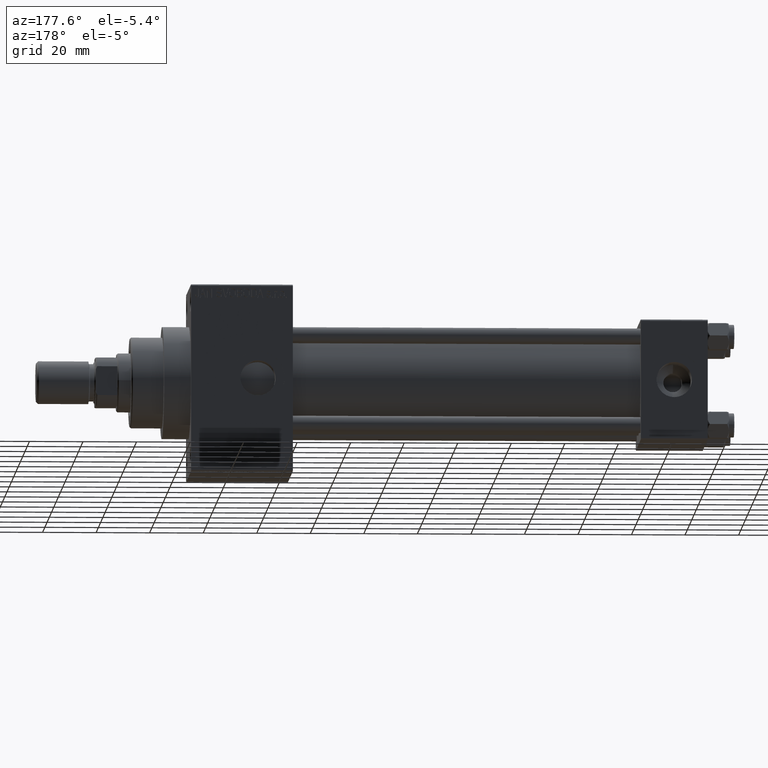
[diagram: clean part render]
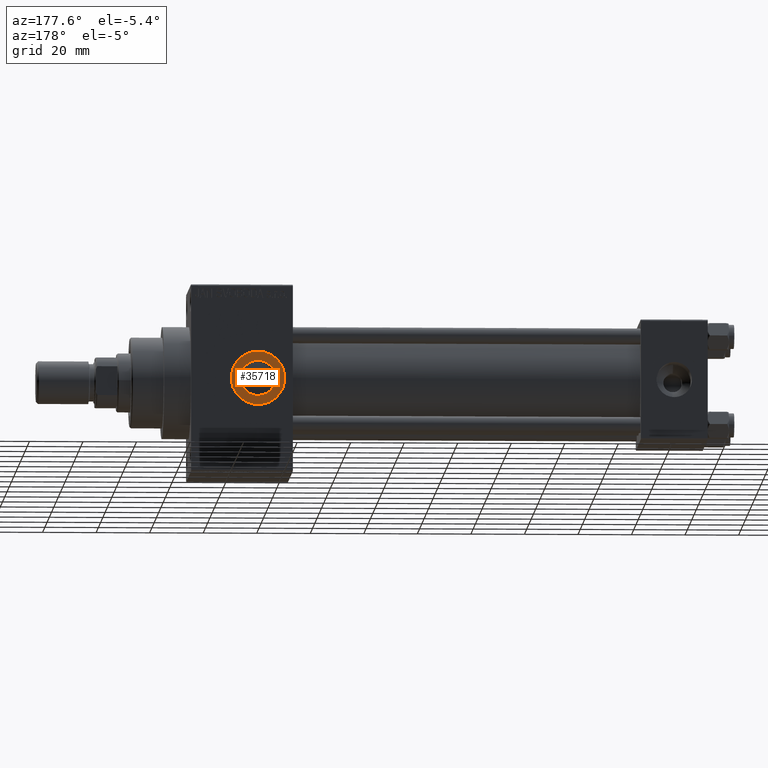
[diagram: same view with one face highlighted and labeled with its STEP entity id]
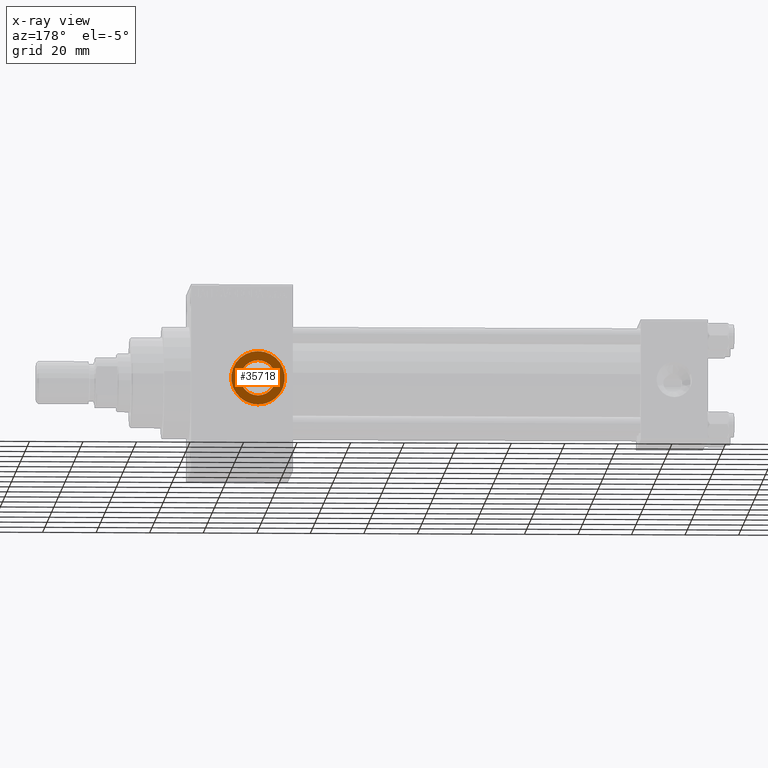
[diagram: x-ray of the same camera — body ghosted, the highlighted face saturated]
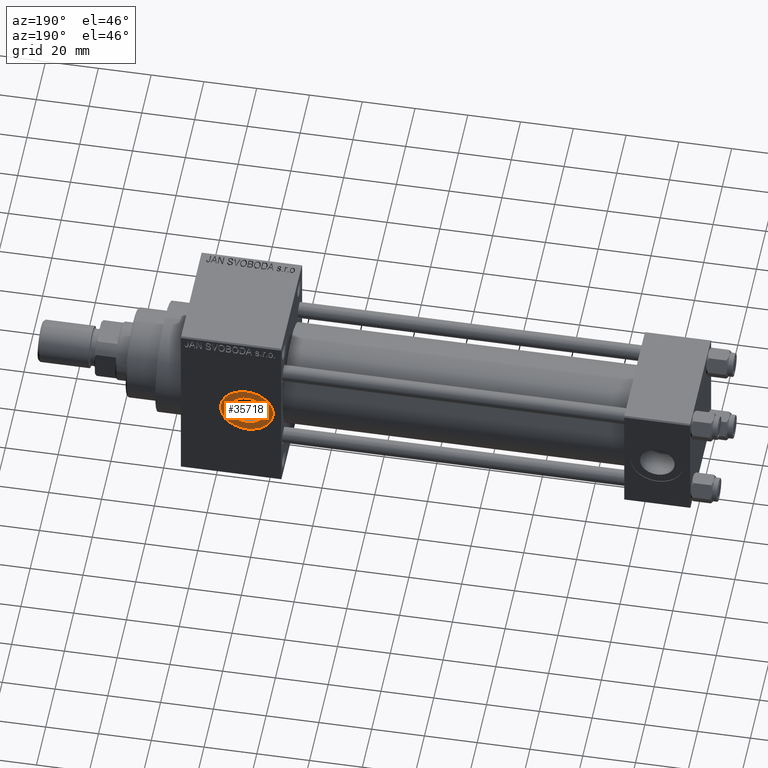
[diagram: same view with one face highlighted and labeled with its STEP entity id]
A machine part, auxiliary view. The second image highlights one B-rep face of the part: STEP entity #35718.
The next image is the same camera in x-ray: the body ghosted, the highlighted face saturated — about 0% of this face is hidden behind the body in this view.
A second angle (auxiliary view) of the same face is appended — the face is thin or edge-on in the first view.
In plain terms, the highlighted planar face has unit normal (0, 1, 0).
Its self-contained STEP definition (entity closure, byte-faithful):
#1039 = EDGE_CURVE ( 'NONE', #35829, #25819, #5095, .T. ) ;
#1121 = ORIENTED_EDGE ( 'NONE', *, *, #34921, .T. ) ;
#2079 = FACE_OUTER_BOUND ( 'NONE', #4061, .T. ) ;
#3885 = ORIENTED_EDGE ( 'NONE', *, *, #1039, .T. ) ;
#4061 = EDGE_LOOP ( 'NONE', ( #1121, #3885 ) ) ;
#5095 = CIRCLE ( 'NONE', #25123, 9.999999999999978684 ) ;
#8049 = VERTEX_POINT ( 'NONE', #8055 ) ;
#8055 = CARTESIAN_POINT ( 'NONE',  ( 168.0000000000000000, 22.29999999999999716, -6.580000000000015170 ) ) ;
#8562 = CARTESIAN_POINT ( 'NONE',  ( 168.0000000000000000, 22.29999999999999716, 0.000000000000000000 ) ) ;
#10404 = CIRCLE ( 'NONE', #26576, 6.580000000000015170 ) ;
#10503 = DIRECTION ( 'NONE',  ( 0.000000000000000000, 0.000000000000000000, 1.000000000000000000 ) ) ;
#10744 = DIRECTION ( 'NONE',  ( 0.000000000000000000, 1.000000000000000000, 0.000000000000000000 ) ) ;
#14152 = CARTESIAN_POINT ( 'NONE',  ( 168.0000000000000000, 22.29999999999999716, 0.000000000000000000 ) ) ;
#16767 = DIRECTION ( 'NONE',  ( 0.000000000000000000, -0.000000000000000000, 1.000000000000000000 ) ) ;
#18254 = DIRECTION ( 'NONE',  ( 0.000000000000000000, 1.000000000000000000, 0.000000000000000000 ) ) ;
#19659 = DIRECTION ( 'NONE',  ( 0.000000000000000000, 1.000000000000000000, 0.000000000000000000 ) ) ;
#20168 = PLANE ( 'NONE',  #25995 ) ;
#20405 = FACE_BOUND ( 'NONE', #47408, .T. ) ;
#23668 = AXIS2_PLACEMENT_3D ( 'NONE', #26684, #33907, #33439 ) ;
#25123 = AXIS2_PLACEMENT_3D ( 'NONE', #47078, #10744, #10503 ) ;
#25249 = DIRECTION ( 'NONE',  ( 0.000000000000000000, 0.000000000000000000, 1.000000000000000000 ) ) ;
#25819 = VERTEX_POINT ( 'NONE', #32988 ) ;
#25891 = EDGE_CURVE ( 'NONE', #8049, #36059, #10404, .T. ) ;
#25995 = AXIS2_PLACEMENT_3D ( 'NONE', #35077, #31007, #16767 ) ;
#26576 = AXIS2_PLACEMENT_3D ( 'NONE', #8562, #19659, #27350 ) ;
#26684 = CARTESIAN_POINT ( 'NONE',  ( 168.0000000000000000, 22.29999999999999716, 0.000000000000000000 ) ) ;
#27350 = DIRECTION ( 'NONE',  ( 0.000000000000000000, 0.000000000000000000, 1.000000000000000000 ) ) ;
#28202 = CIRCLE ( 'NONE', #44329, 6.580000000000015170 ) ;
#31007 = DIRECTION ( 'NONE',  ( 0.000000000000000000, 1.000000000000000000, 0.000000000000000000 ) ) ;
#31671 = CARTESIAN_POINT ( 'NONE',  ( 168.0000000000000000, 22.29999999999999716, 6.580000000000015170 ) ) ;
#31685 = EDGE_CURVE ( 'NONE', #36059, #8049, #28202, .T. ) ;
#32988 = CARTESIAN_POINT ( 'NONE',  ( 168.0000000000000000, 22.29999999999999716, 9.999999999999978684 ) ) ;
#33439 = DIRECTION ( 'NONE',  ( 0.000000000000000000, 0.000000000000000000, 1.000000000000000000 ) ) ;
#33907 = DIRECTION ( 'NONE',  ( 0.000000000000000000, 1.000000000000000000, 0.000000000000000000 ) ) ;
#34921 = EDGE_CURVE ( 'NONE', #25819, #35829, #35226, .T. ) ;
#35062 = ORIENTED_EDGE ( 'NONE', *, *, #31685, .F. ) ;
#35077 = CARTESIAN_POINT ( 'NONE',  ( 168.0000000000000000, 22.29999999999999716, 0.000000000000000000 ) ) ;
#35226 = CIRCLE ( 'NONE', #23668, 9.999999999999978684 ) ;
#35718 = ADVANCED_FACE ( 'NONE', ( #20405, #2079 ), #20168, .T. ) ;
#35829 = VERTEX_POINT ( 'NONE', #40354 ) ;
#36059 = VERTEX_POINT ( 'NONE', #31671 ) ;
#39775 = ORIENTED_EDGE ( 'NONE', *, *, #25891, .F. ) ;
#40354 = CARTESIAN_POINT ( 'NONE',  ( 168.0000000000000000, 22.29999999999999716, -9.999999999999978684 ) ) ;
#44329 = AXIS2_PLACEMENT_3D ( 'NONE', #14152, #18254, #25249 ) ;
#47078 = CARTESIAN_POINT ( 'NONE',  ( 168.0000000000000000, 22.29999999999999716, 0.000000000000000000 ) ) ;
#47408 = EDGE_LOOP ( 'NONE', ( #35062, #39775 ) ) ;